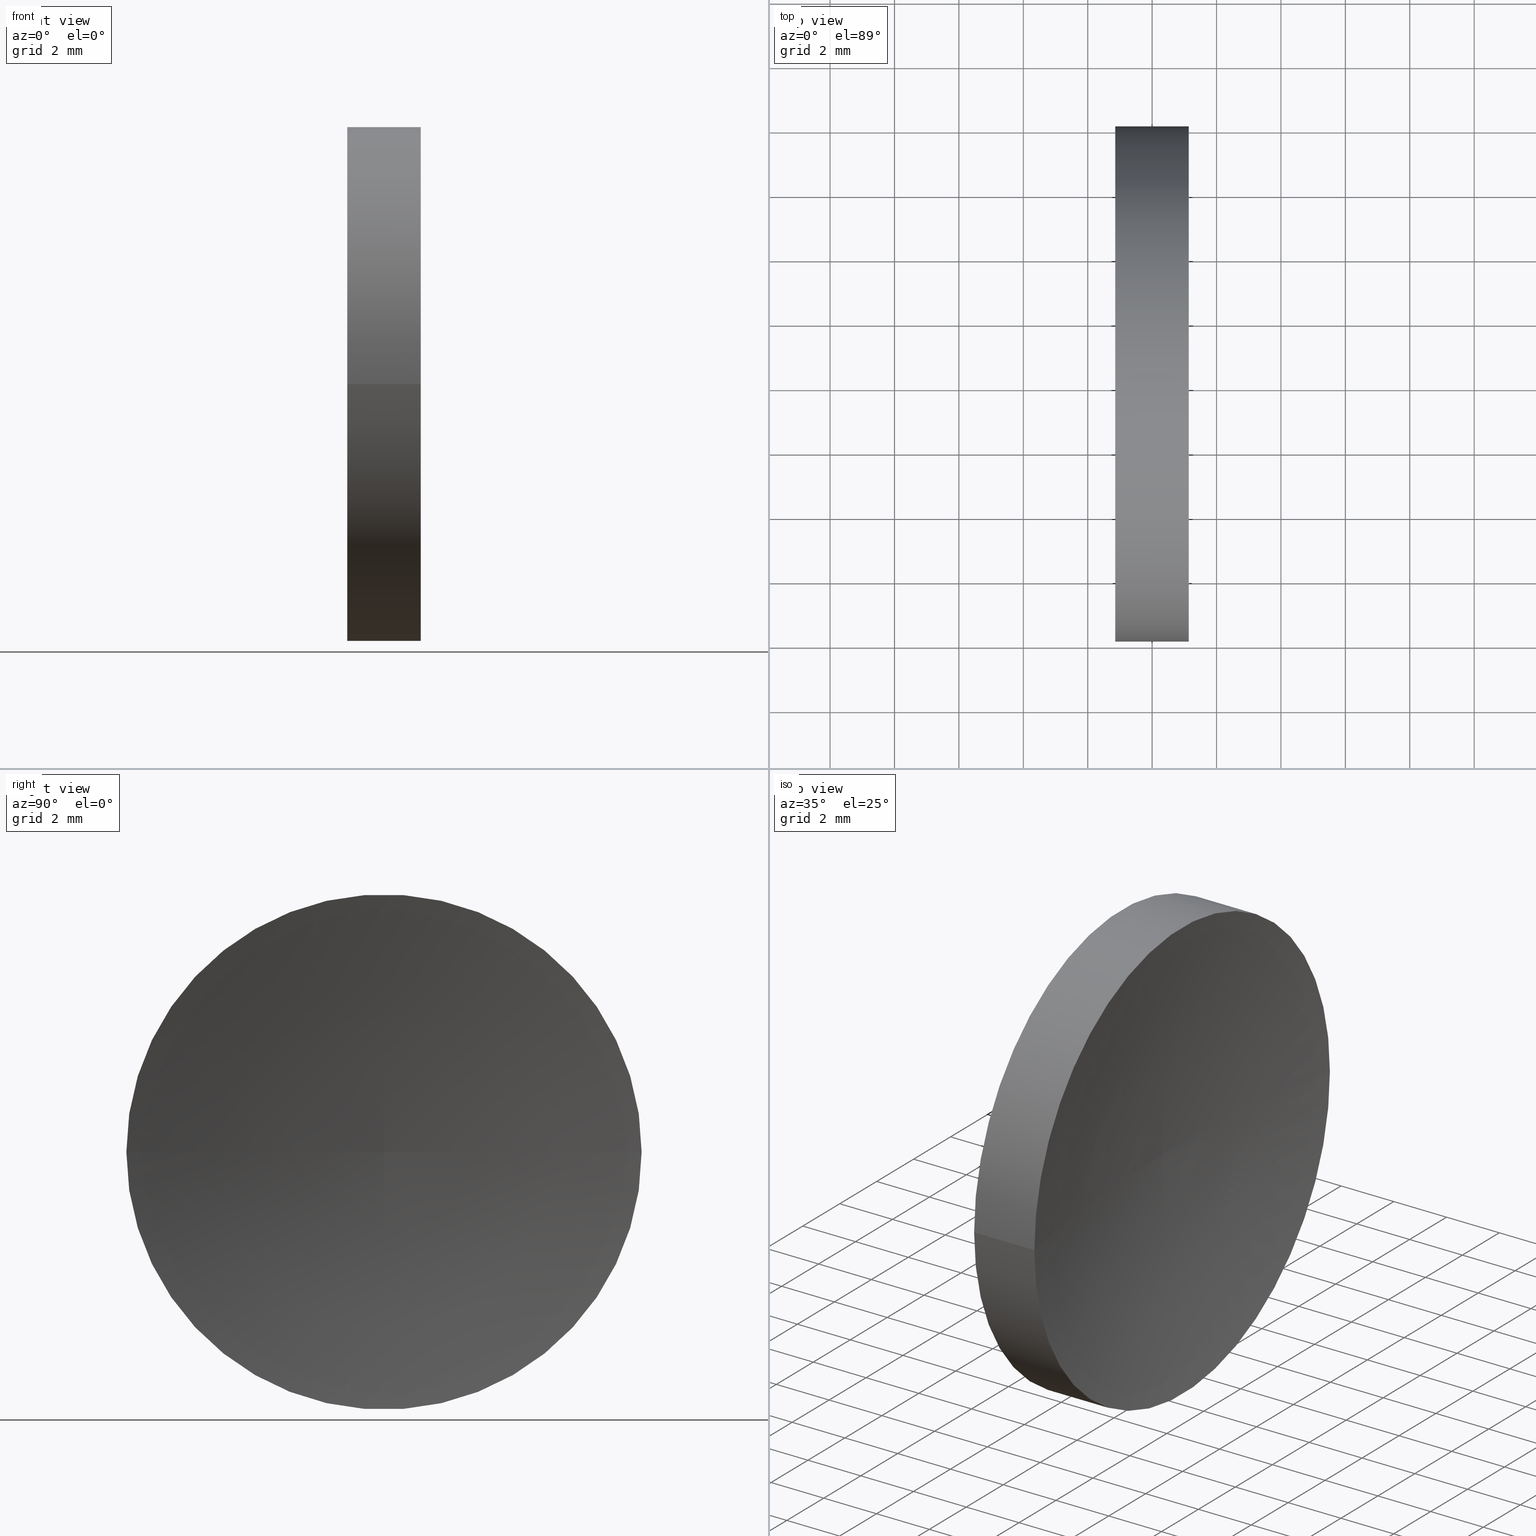
[diagram: canonical four-view strip — front | top / right | iso, engineering-drawing reading convention]
A machine part, canonical four-view strip (front | top / right | iso — engineering-drawing reading convention). The complete STEP part file that produces these views, byte-faithful:
ISO-10303-21;
HEADER;
FILE_DESCRIPTION (( 'STEP AP214' ),
    '1' );
FILE_NAME ('120145.STEP',
    '2019-06-20T01:45:02',
    ( '' ),
    ( '' ),
    'SwSTEP 2.0',
    'SolidWorks 2016',
    '' );
FILE_SCHEMA (( 'AUTOMOTIVE_DESIGN' ));
ENDSEC;

DATA;
#1 = CARTESIAN_POINT ( 'NONE',  ( 0.0000000000000000000, 0.0000000000000000000, 0.0000000000000000000 ) ) ;
#2 = APPLICATION_CONTEXT ( 'automotive_design' ) ;
#3 = ORIENTED_EDGE ( 'NONE', *, *, #164, .F. ) ;
#4 = STYLED_ITEM ( 'NONE', ( #85 ), #106 ) ;
#5 = CARTESIAN_POINT ( 'NONE',  ( 44.85442262622448300, 26.06225218280608400, 0.0000000000000000000 ) ) ;
#6 = PRODUCT_DEFINITION_FORMATION_WITH_SPECIFIED_SOURCE ( '�κ�', '', #113, .NOT_KNOWN. ) ;
#7 = EDGE_LOOP ( 'NONE', ( #57, #43, #66 ) ) ;
#8 = AXIS2_PLACEMENT_3D ( 'NONE', #105, #104, #10 ) ;
#9 = DIRECTION ( 'NONE',  ( 0.0000000000000000000, -1.000000000000000000, 0.0000000000000000000 ) ) ;
#10 = DIRECTION ( 'NONE',  ( 0.0000000000000000000, -1.000000000000000000, 0.0000000000000000000 ) ) ;
#11 = PLANE ( 'NONE',  #36 ) ;
#12 = TOROIDAL_SURFACE ( 'NONE', #30, -0.003511916337131583800, 41.30000000000000400 ) ;
#13 = ADVANCED_FACE ( 'NONE', ( #35 ), #160, .T. ) ;
#14 = ADVANCED_FACE ( 'NONE', ( #123 ), #12, .F. ) ;
#15 = CARTESIAN_POINT ( 'NONE',  ( 87.65442246817359300, 26.06576409914319800, 0.0000000000000000000 ) ) ;
#16 = ORIENTED_EDGE ( 'NONE', *, *, #145, .F. ) ;
#17 = SURFACE_STYLE_USAGE ( .BOTH. , #29 ) ;
#18 = CARTESIAN_POINT ( 'NONE',  ( 43.01195023616492100, 26.06225218280608400, 0.0000000000000000000 ) ) ;
#19 =( NAMED_UNIT ( * ) SI_UNIT ( $, .STERADIAN. ) SOLID_ANGLE_UNIT ( ) );
#20 = CIRCLE ( 'NONE', #148, 8.000000000000000000 ) ;
#21 = DIRECTION ( 'NONE',  ( -1.000000000000000000, 4.058245434298766700E-016, -0.0000000000000000000 ) ) ;
#22 = SURFACE_STYLE_FILL_AREA ( #95 ) ;
#23 = EDGE_CURVE ( 'NONE', #44, #134, #107, .T. ) ;
#24 = EDGE_LOOP ( 'NONE', ( #3, #131, #120, #16 ) ) ;
#25 = VERTEX_POINT ( 'NONE', #161 ) ;
#26 =( GEOMETRIC_REPRESENTATION_CONTEXT ( 3 ) GLOBAL_UNCERTAINTY_ASSIGNED_CONTEXT ( ( #139 ) ) GLOBAL_UNIT_ASSIGNED_CONTEXT ( ( #52, #59, #143 ) ) REPRESENTATION_CONTEXT ( 'NONE', 'WORKASPACE' ) );
#27 = PRODUCT_RELATED_PRODUCT_CATEGORY ( 'part', '', ( #113 ) ) ;
#28 = CIRCLE ( 'NONE', #127, 8.000000000000000000 ) ;
#29 = SURFACE_SIDE_STYLE ('',( #22 ) ) ;
#30 = AXIS2_PLACEMENT_3D ( 'NONE', #166, #126, #72 ) ;
#31 = DIRECTION ( 'NONE',  ( 0.0000000000000000000, -0.0000000000000000000, -1.000000000000000000 ) ) ;
#32 = COLOUR_RGB ( '',1.000000000000000000, 1.000000000000000000, 1.000000000000000000 ) ;
#33 = CIRCLE ( 'NONE', #101, 8.000000000000000000 ) ;
#34 = CARTESIAN_POINT ( 'NONE',  ( 87.65442246817359300, 26.06225218280606600, 0.0000000000000000000 ) ) ;
#35 = FACE_OUTER_BOUND ( 'NONE', #24, .T. ) ;
#36 = AXIS2_PLACEMENT_3D ( 'NONE', #147, #91, #133 ) ;
#37 = ORIENTED_EDGE ( 'NONE', *, *, #23, .F. ) ;
#38 = DIRECTION ( 'NONE',  ( 1.000000000000000000, 0.0000000000000000000, 0.0000000000000000000 ) ) ;
#39 = EDGE_CURVE ( 'NONE', #80, #25, #33, .T. ) ;
#40 = DIRECTION ( 'NONE',  ( -4.058245434298766700E-016, -1.000000000000000000, 0.0000000000000000000 ) ) ;
#41 = ORIENTED_EDGE ( 'NONE', *, *, #145, .T. ) ;
#42 = PRESENTATION_LAYER_ASSIGNMENT (  '', '', ( #142 ) ) ;
#43 = ORIENTED_EDGE ( 'NONE', *, *, #122, .T. ) ;
#44 = VERTEX_POINT ( 'NONE', #88 ) ;
#45 = AXIS2_PLACEMENT_3D ( 'NONE', #34, #21, #40 ) ;
#46 = PRESENTATION_STYLE_ASSIGNMENT (( #17 ) ) ;
#47 = ADVANCED_FACE ( 'NONE', ( #49 ), #11, .F. ) ;
#48 = CARTESIAN_POINT ( 'NONE',  ( 47.13734215622306300, 26.06225218280608400, 0.0000000000000000000 ) ) ;
#49 = FACE_OUTER_BOUND ( 'NONE', #129, .T. ) ;
#50 = DIRECTION ( 'NONE',  ( 0.0000000000000000000, -1.000000000000000000, 0.0000000000000000000 ) ) ;
#51 =( NAMED_UNIT ( * ) PLANE_ANGLE_UNIT ( ) SI_UNIT ( $, .RADIAN. ) );
#52 =( LENGTH_UNIT ( ) NAMED_UNIT ( * ) SI_UNIT ( .MILLI., .METRE. ) );
#53 = PRODUCT_CONTEXT ( 'NONE', #2, 'mechanical' ) ;
#54 = DIRECTION ( 'NONE',  ( 0.0000000000000000000, -1.000000000000000000, 0.0000000000000000000 ) ) ;
#55 = CLOSED_SHELL ( 'NONE', ( #165, #137, #14, #13, #47 ) ) ;
#56 = VERTEX_POINT ( 'NONE', #89 ) ;
#57 = ORIENTED_EDGE ( 'NONE', *, *, #39, .F. ) ;
#58 = DIRECTION ( 'NONE',  ( -1.000000000000000000, 4.058245434298766700E-016, -0.0000000000000000000 ) ) ;
#59 =( NAMED_UNIT ( * ) PLANE_ANGLE_UNIT ( ) SI_UNIT ( $, .RADIAN. ) );
#60 = DIRECTION ( 'NONE',  ( -4.969917281268344600E-032, -1.224646799147353200E-016, 1.000000000000000000 ) ) ;
#61 = EDGE_LOOP ( 'NONE', ( #81, #73, #154 ) ) ;
#62 = DIRECTION ( 'NONE',  ( 0.0000000000000000000, 0.0000000000000000000, 1.000000000000000000 ) ) ;
#63 = MECHANICAL_DESIGN_GEOMETRIC_PRESENTATION_REPRESENTATION (  '', ( #142 ), #114 ) ;
#64 = MECHANICAL_DESIGN_GEOMETRIC_PRESENTATION_REPRESENTATION (  '', ( #4 ), #119 ) ;
#65 = MANIFOLD_SOLID_BREP ( '��ת1', #55 ) ;
#66 = ORIENTED_EDGE ( 'NONE', *, *, #103, .F. ) ;
#67 = LINE ( 'NONE', #128, #99 ) ;
#68 = AXIS2_PLACEMENT_3D ( 'NONE', #1, #62, #38 ) ;
#69 = PRODUCT_DEFINITION_CONTEXT ( 'detailed design', #75, 'design' ) ;
#70 = CARTESIAN_POINT ( 'NONE',  ( 47.13734215622306300, 34.06225218280610500, 9.797174393178849300E-016 ) ) ;
#71 = UNCERTAINTY_MEASURE_WITH_UNIT (LENGTH_MEASURE( 1.000000000000000100E-005 ), #111, 'distance_accuracy_value', 'NONE');
#72 = DIRECTION ( 'NONE',  ( -4.058245434298766700E-016, -1.000000000000000000, 0.0000000000000000000 ) ) ;
#73 = ORIENTED_EDGE ( 'NONE', *, *, #78, .F. ) ;
#74 = CARTESIAN_POINT ( 'NONE',  ( 43.01195023616492100, 18.06225218280608400, 0.0000000000000000000 ) ) ;
#75 = APPLICATION_CONTEXT ( 'automotive_design' ) ;
#76 = LINE ( 'NONE', #74, #141 ) ;
#77 = SURFACE_STYLE_USAGE ( .BOTH. , #153 ) ;
#78 = EDGE_CURVE ( 'NONE', #25, #80, #28, .T. ) ;
#79 = DIRECTION ( 'NONE',  ( -1.000000000000000000, 4.058245434298766700E-016, -0.0000000000000000000 ) ) ;
#80 = VERTEX_POINT ( 'NONE', #70 ) ;
#81 = ORIENTED_EDGE ( 'NONE', *, *, #122, .F. ) ;
#82 = DIRECTION ( 'NONE',  ( -1.000000000000000000, 4.058245434298766700E-016, -0.0000000000000000000 ) ) ;
#83 = DIRECTION ( 'NONE',  ( -1.000000000000000000, 4.058245434298766700E-016, -0.0000000000000000000 ) ) ;
#84 = AXIS2_PLACEMENT_3D ( 'NONE', #97, #60, #112 ) ;
#85 = PRESENTATION_STYLE_ASSIGNMENT (( #77 ) ) ;
#86 = PRODUCT_DEFINITION_SHAPE ( 'NONE', 'NONE',  #98 ) ;
#87 = EDGE_LOOP ( 'NONE', ( #121, #118, #37, #92 ) ) ;
#88 = CARTESIAN_POINT ( 'NONE',  ( 44.85442262622448300, 18.06225218280608400, 0.0000000000000000000 ) ) ;
#89 = CARTESIAN_POINT ( 'NONE',  ( 46.35442261749025100, 26.06225218280608400, 0.0000000000000000000 ) ) ;
#90 = CARTESIAN_POINT ( 'NONE',  ( 47.13734215622306300, 26.06225218280608400, 0.0000000000000000000 ) ) ;
#91 = DIRECTION ( 'NONE',  ( 1.000000000000000000, -4.058245434298766700E-016, 0.0000000000000000000 ) ) ;
#92 = ORIENTED_EDGE ( 'NONE', *, *, #155, .F. ) ;
#93 = CARTESIAN_POINT ( 'NONE',  ( 43.01195023616492100, 26.06225218280608400, 0.0000000000000000000 ) ) ;
#94 = FILL_AREA_STYLE_COLOUR ( '', #158 ) ;
#95 = FILL_AREA_STYLE ('',( #94 ) ) ;
#96 =( LENGTH_UNIT ( ) NAMED_UNIT ( * ) SI_UNIT ( .MILLI., .METRE. ) );
#97 = CARTESIAN_POINT ( 'NONE',  ( 87.65442246817359300, 26.05874026646893400, -4.300857101141491200E-019 ) ) ;
#98 = PRODUCT_DEFINITION ( 'δ֪', '', #6, #69 ) ;
#99 = VECTOR ( 'NONE', #150, 1000.000000000000000 ) ;
#100 = CIRCLE ( 'NONE', #132, 41.30000000000000400 ) ;
#101 = AXIS2_PLACEMENT_3D ( 'NONE', #90, #82, #9 ) ;
#102 = CIRCLE ( 'NONE', #84, 41.30000000000000400 ) ;
#103 = EDGE_CURVE ( 'NONE', #25, #56, #100, .T. ) ;
#104 = DIRECTION ( 'NONE',  ( -1.000000000000000000, 4.058245434298766700E-016, -0.0000000000000000000 ) ) ;
#105 = CARTESIAN_POINT ( 'NONE',  ( 44.85442262622448300, 26.06225218280608400, 0.0000000000000000000 ) ) ;
#106 = ADVANCED_BREP_SHAPE_REPRESENTATION ( '120145', ( #65, #68 ), #26 ) ;
#107 = CIRCLE ( 'NONE', #8, 8.000000000000000000 ) ;
#108 = DIRECTION ( 'NONE',  ( -1.000000000000000000, 4.058245434298766700E-016, -0.0000000000000000000 ) ) ;
#109 = TOROIDAL_SURFACE ( 'NONE', #45, -0.003511916337131583800, 41.30000000000000400 ) ;
#110 =( NAMED_UNIT ( * ) PLANE_ANGLE_UNIT ( ) SI_UNIT ( $, .RADIAN. ) );
#111 =( LENGTH_UNIT ( ) NAMED_UNIT ( * ) SI_UNIT ( .MILLI., .METRE. ) );
#112 = DIRECTION ( 'NONE',  ( 0.0000000000000000000, -1.000000000000000000, -1.224646799147353200E-016 ) ) ;
#113 = PRODUCT ( '120145', '120145', '', ( #53 ) ) ;
#114 =( GEOMETRIC_REPRESENTATION_CONTEXT ( 3 ) GLOBAL_UNCERTAINTY_ASSIGNED_CONTEXT ( ( #125 ) ) GLOBAL_UNIT_ASSIGNED_CONTEXT ( ( #96, #110, #149 ) ) REPRESENTATION_CONTEXT ( 'NONE', 'WORKASPACE' ) );
#115 = DIRECTION ( 'NONE',  ( -1.000000000000000000, 0.0000000000000000000, 0.0000000000000000000 ) ) ;
#116 = FACE_OUTER_BOUND ( 'NONE', #7, .T. ) ;
#117 = AXIS2_PLACEMENT_3D ( 'NONE', #93, #108, #124 ) ;
#118 = ORIENTED_EDGE ( 'NONE', *, *, #164, .T. ) ;
#119 =( GEOMETRIC_REPRESENTATION_CONTEXT ( 3 ) GLOBAL_UNCERTAINTY_ASSIGNED_CONTEXT ( ( #71 ) ) GLOBAL_UNIT_ASSIGNED_CONTEXT ( ( #111, #51, #19 ) ) REPRESENTATION_CONTEXT ( 'NONE', 'WORKASPACE' ) );
#120 = ORIENTED_EDGE ( 'NONE', *, *, #155, .T. ) ;
#121 = ORIENTED_EDGE ( 'NONE', *, *, #78, .T. ) ;
#122 = EDGE_CURVE ( 'NONE', #80, #56, #102, .T. ) ;
#123 = FACE_OUTER_BOUND ( 'NONE', #61, .T. ) ;
#124 = DIRECTION ( 'NONE',  ( 0.0000000000000000000, -1.000000000000000000, 0.0000000000000000000 ) ) ;
#125 = UNCERTAINTY_MEASURE_WITH_UNIT (LENGTH_MEASURE( 1.000000000000000100E-005 ), #96, 'distance_accuracy_value', 'NONE');
#126 = DIRECTION ( 'NONE',  ( -1.000000000000000000, 4.058245434298766700E-016, -0.0000000000000000000 ) ) ;
#127 = AXIS2_PLACEMENT_3D ( 'NONE', #48, #135, #50 ) ;
#128 = CARTESIAN_POINT ( 'NONE',  ( 43.01195023616492100, 34.06225218280608400, 9.797174393178825700E-016 ) ) ;
#129 = EDGE_LOOP ( 'NONE', ( #146, #41 ) ) ;
#130 = FILL_AREA_STYLE ('',( #152 ) ) ;
#131 = ORIENTED_EDGE ( 'NONE', *, *, #39, .T. ) ;
#132 = AXIS2_PLACEMENT_3D ( 'NONE', #15, #31, #115 ) ;
#133 = DIRECTION ( 'NONE',  ( 4.058245434298766700E-016, 1.000000000000000000, 0.0000000000000000000 ) ) ;
#134 = VERTEX_POINT ( 'NONE', #163 ) ;
#135 = DIRECTION ( 'NONE',  ( -1.000000000000000000, 4.058245434298766700E-016, -0.0000000000000000000 ) ) ;
#136 = APPLICATION_PROTOCOL_DEFINITION ( 'draft international standard', 'automotive_design', 1998, #75 ) ;
#137 = ADVANCED_FACE ( 'NONE', ( #116 ), #109, .F. ) ;
#138 = DIRECTION ( 'NONE',  ( 0.0000000000000000000, -1.000000000000000000, 0.0000000000000000000 ) ) ;
#139 = UNCERTAINTY_MEASURE_WITH_UNIT (LENGTH_MEASURE( 1.000000000000000100E-005 ), #52, 'distance_accuracy_value', 'NONE');
#140 = SHAPE_DEFINITION_REPRESENTATION ( #86, #106 ) ;
#141 = VECTOR ( 'NONE', #58, 1000.000000000000000 ) ;
#142 = STYLED_ITEM ( 'NONE', ( #46 ), #65 ) ;
#143 =( NAMED_UNIT ( * ) SI_UNIT ( $, .STERADIAN. ) SOLID_ANGLE_UNIT ( ) );
#144 = CYLINDRICAL_SURFACE ( 'NONE', #162, 8.000000000000000000 ) ;
#145 = EDGE_CURVE ( 'NONE', #134, #44, #20, .T. ) ;
#146 = ORIENTED_EDGE ( 'NONE', *, *, #23, .T. ) ;
#147 = CARTESIAN_POINT ( 'NONE',  ( 44.85442262622448300, 26.06225218280608400, 0.0000000000000000000 ) ) ;
#148 = AXIS2_PLACEMENT_3D ( 'NONE', #5, #83, #54 ) ;
#149 =( NAMED_UNIT ( * ) SI_UNIT ( $, .STERADIAN. ) SOLID_ANGLE_UNIT ( ) );
#150 = DIRECTION ( 'NONE',  ( -1.000000000000000000, 4.058245434298766700E-016, -0.0000000000000000000 ) ) ;
#151 = APPLICATION_PROTOCOL_DEFINITION ( 'draft international standard', 'automotive_design', 1998, #2 ) ;
#152 = FILL_AREA_STYLE_COLOUR ( '', #32 ) ;
#153 = SURFACE_SIDE_STYLE ('',( #157 ) ) ;
#154 = ORIENTED_EDGE ( 'NONE', *, *, #103, .T. ) ;
#155 = EDGE_CURVE ( 'NONE', #25, #44, #76, .T. ) ;
#156 = PRESENTATION_LAYER_ASSIGNMENT (  '', '', ( #4 ) ) ;
#157 = SURFACE_STYLE_FILL_AREA ( #130 ) ;
#158 = COLOUR_RGB ( '',1.000000000000000000, 1.000000000000000000, 1.000000000000000000 ) ;
#159 = FACE_OUTER_BOUND ( 'NONE', #87, .T. ) ;
#160 = CYLINDRICAL_SURFACE ( 'NONE', #117, 8.000000000000000000 ) ;
#161 = CARTESIAN_POINT ( 'NONE',  ( 47.13734215622306300, 18.06225218280607000, 0.0000000000000000000 ) ) ;
#162 = AXIS2_PLACEMENT_3D ( 'NONE', #18, #79, #138 ) ;
#163 = CARTESIAN_POINT ( 'NONE',  ( 44.85442262622448300, 34.06225218280608400, 9.797174393178825700E-016 ) ) ;
#164 = EDGE_CURVE ( 'NONE', #80, #134, #67, .T. ) ;
#165 = ADVANCED_FACE ( 'NONE', ( #159 ), #144, .T. ) ;
#166 = CARTESIAN_POINT ( 'NONE',  ( 87.65442246817359300, 26.06225218280606600, 0.0000000000000000000 ) ) ;
ENDSEC;
END-ISO-10303-21;
